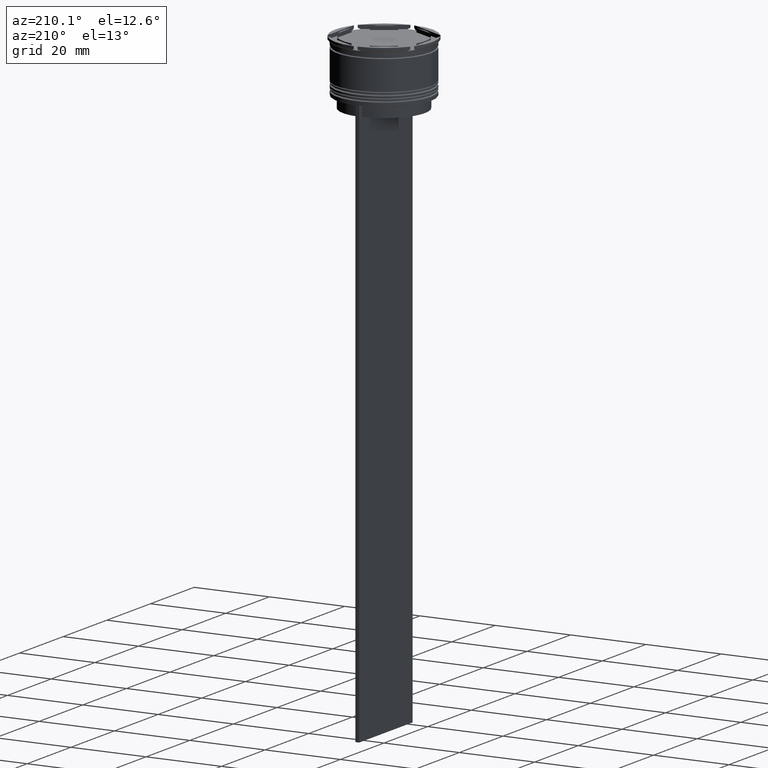
[diagram: clean part render]
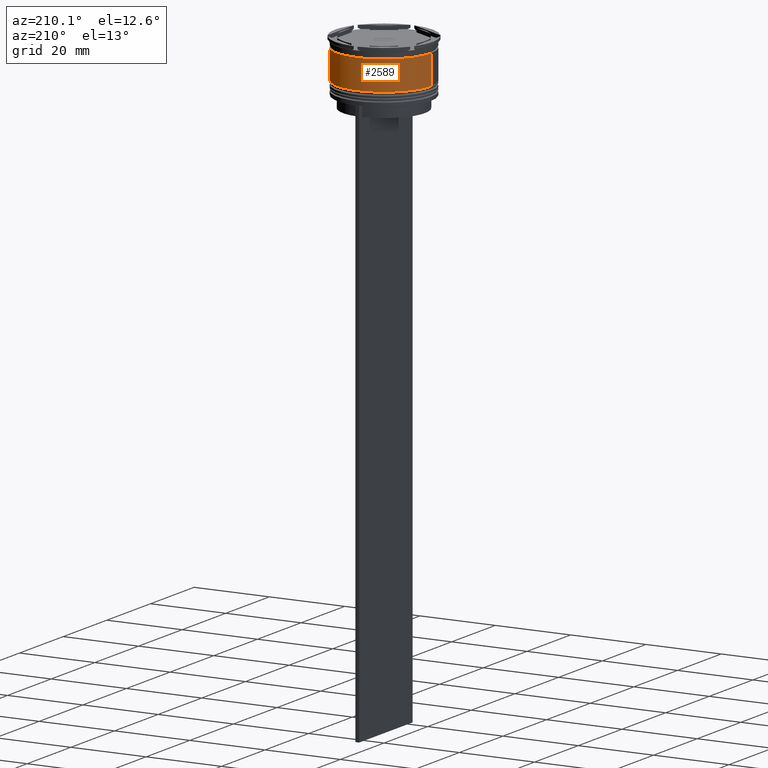
[diagram: same view with one face highlighted and labeled with its STEP entity id]
A machine part, auxiliary view. The second image highlights one B-rep face of the part: STEP entity #2589.
In plain terms, the highlighted cylindrical surface (partial cylindrical patch) has radius 12.5 mm, axis along (-0, -0, 1).
Its self-contained STEP definition (entity closure, byte-faithful):
#65 = DIRECTION ( 'NONE',  ( 1.000000000000000000, 0.000000000000000000, 0.000000000000000000 ) ) ;
#130 = ORIENTED_EDGE ( 'NONE', *, *, #1257, .F. ) ;
#139 = DIRECTION ( 'NONE',  ( -0.000000000000000000, -0.000000000000000000, 1.000000000000000000 ) ) ;
#242 = DIRECTION ( 'NONE',  ( 1.000000000000000000, 0.000000000000000000, 0.000000000000000000 ) ) ;
#259 = EDGE_CURVE ( 'NONE', #1717, #1984, #2417, .T. ) ;
#292 = VERTEX_POINT ( 'NONE', #778 ) ;
#302 = CYLINDRICAL_SURFACE ( 'NONE', #2418, 12.50000000000000000 ) ;
#359 = CARTESIAN_POINT ( 'NONE',  ( 12.50000000000000000, 0.000000000000000000, 0.000000000000000000 ) ) ;
#360 = CIRCLE ( 'NONE', #2644, 12.49999999999999822 ) ;
#458 = DIRECTION ( 'NONE',  ( -0.000000000000000000, -0.000000000000000000, 1.000000000000000000 ) ) ;
#459 = VECTOR ( 'NONE', #2686, 1000.000000000000000 ) ;
#467 = CARTESIAN_POINT ( 'NONE',  ( 0.000000000000000000, 0.000000000000000000, -10.50000000000000178 ) ) ;
#558 = DIRECTION ( 'NONE',  ( 1.000000000000000000, 0.000000000000000000, 0.000000000000000000 ) ) ;
#777 = CARTESIAN_POINT ( 'NONE',  ( 0.000000000000000000, 0.000000000000000000, 0.000000000000000000 ) ) ;
#778 = CARTESIAN_POINT ( 'NONE',  ( 12.49999999999999822, 0.000000000000000000, -2.699999999999999289 ) ) ;
#835 = CARTESIAN_POINT ( 'NONE',  ( -12.50000000000000355, 1.530808498934191916E-15, -10.50000000000000178 ) ) ;
#865 = CARTESIAN_POINT ( 'NONE',  ( 0.000000000000000000, 0.000000000000000000, -2.699999999999999289 ) ) ;
#899 = CARTESIAN_POINT ( 'NONE',  ( 12.50000000000000178, 0.000000000000000000, -10.50000000000000178 ) ) ;
#965 = AXIS2_PLACEMENT_3D ( 'NONE', #467, #1991, #65 ) ;
#981 = EDGE_CURVE ( 'NONE', #292, #1460, #360, .T. ) ;
#1174 = CARTESIAN_POINT ( 'NONE',  ( -12.50000000000000000, 1.530808498934191521E-15, 0.000000000000000000 ) ) ;
#1257 = EDGE_CURVE ( 'NONE', #1717, #292, #2287, .T. ) ;
#1450 = DIRECTION ( 'NONE',  ( -0.000000000000000000, -0.000000000000000000, 1.000000000000000000 ) ) ;
#1460 = VERTEX_POINT ( 'NONE', #1860 ) ;
#1534 = FACE_OUTER_BOUND ( 'NONE', #2361, .T. ) ;
#1539 = ORIENTED_EDGE ( 'NONE', *, *, #981, .F. ) ;
#1717 = VERTEX_POINT ( 'NONE', #899 ) ;
#1804 = ORIENTED_EDGE ( 'NONE', *, *, #259, .T. ) ;
#1860 = CARTESIAN_POINT ( 'NONE',  ( -12.49999999999999822, 1.530808498934191324E-15, -2.699999999999999289 ) ) ;
#1984 = VERTEX_POINT ( 'NONE', #835 ) ;
#1991 = DIRECTION ( 'NONE',  ( -0.000000000000000000, -0.000000000000000000, 1.000000000000000000 ) ) ;
#2140 = ORIENTED_EDGE ( 'NONE', *, *, #2210, .T. ) ;
#2210 = EDGE_CURVE ( 'NONE', #1984, #1460, #2706, .T. ) ;
#2287 = LINE ( 'NONE', #359, #2605 ) ;
#2361 = EDGE_LOOP ( 'NONE', ( #1804, #2140, #1539, #130 ) ) ;
#2417 = CIRCLE ( 'NONE', #965, 12.50000000000000178 ) ;
#2418 = AXIS2_PLACEMENT_3D ( 'NONE', #777, #139, #558 ) ;
#2589 = ADVANCED_FACE ( 'NONE', ( #1534 ), #302, .T. ) ;
#2605 = VECTOR ( 'NONE', #1450, 1000.000000000000000 ) ;
#2644 = AXIS2_PLACEMENT_3D ( 'NONE', #865, #458, #242 ) ;
#2686 = DIRECTION ( 'NONE',  ( -0.000000000000000000, -0.000000000000000000, 1.000000000000000000 ) ) ;
#2706 = LINE ( 'NONE', #1174, #459 ) ;